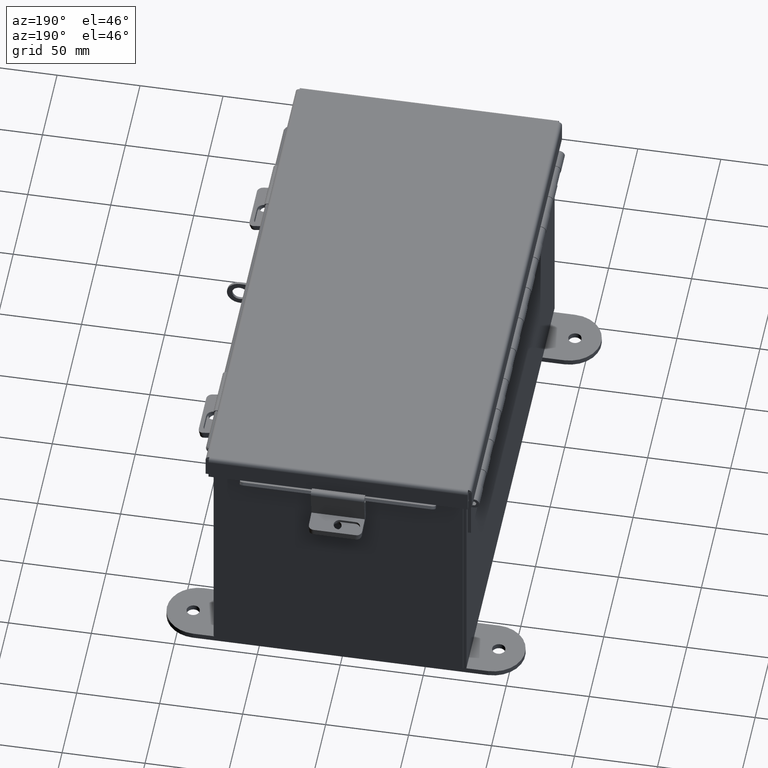
[diagram: clean part render]
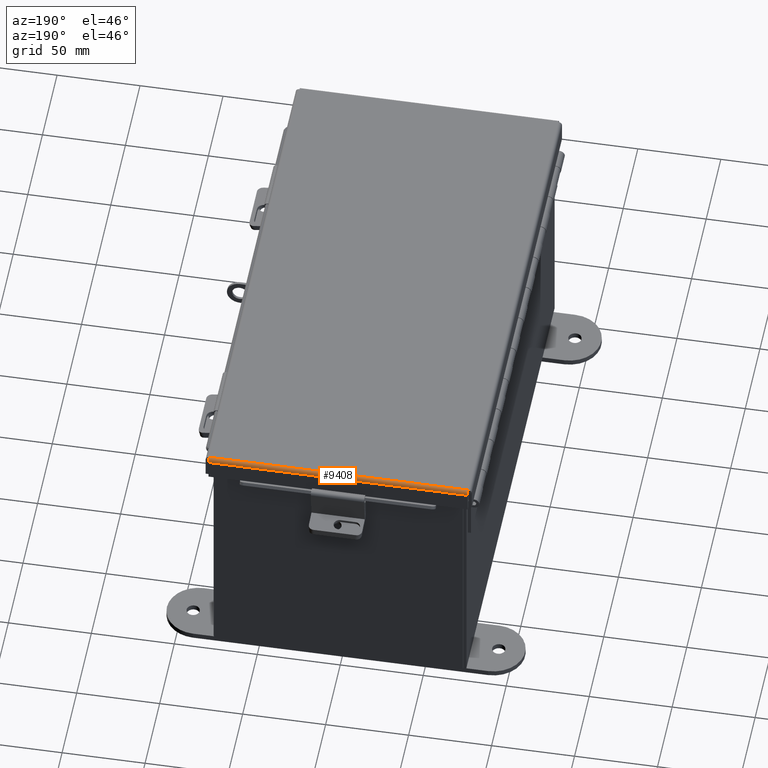
[diagram: same view with one face highlighted and labeled with its STEP entity id]
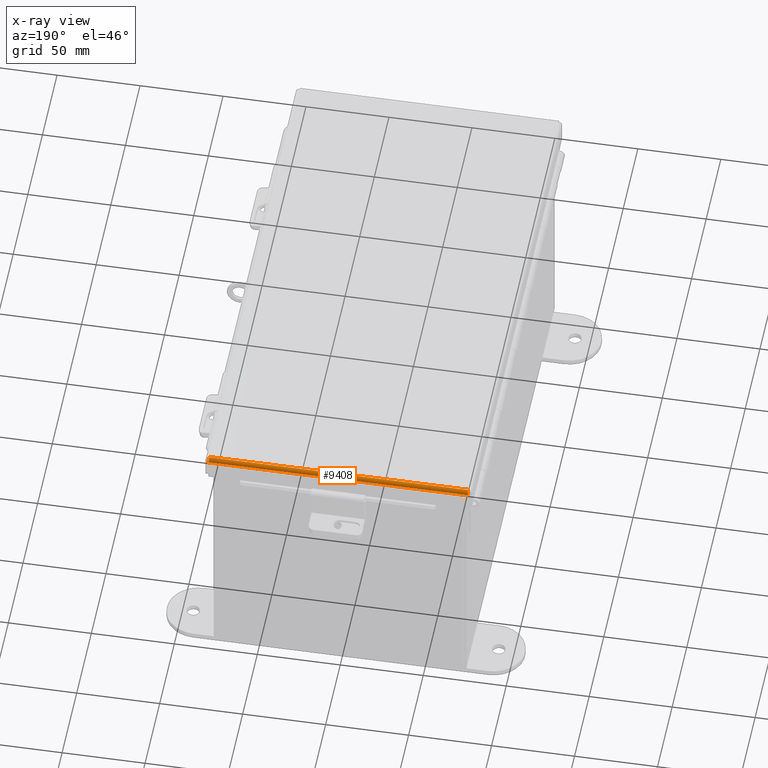
[diagram: x-ray of the same camera — body ghosted, the highlighted face saturated]
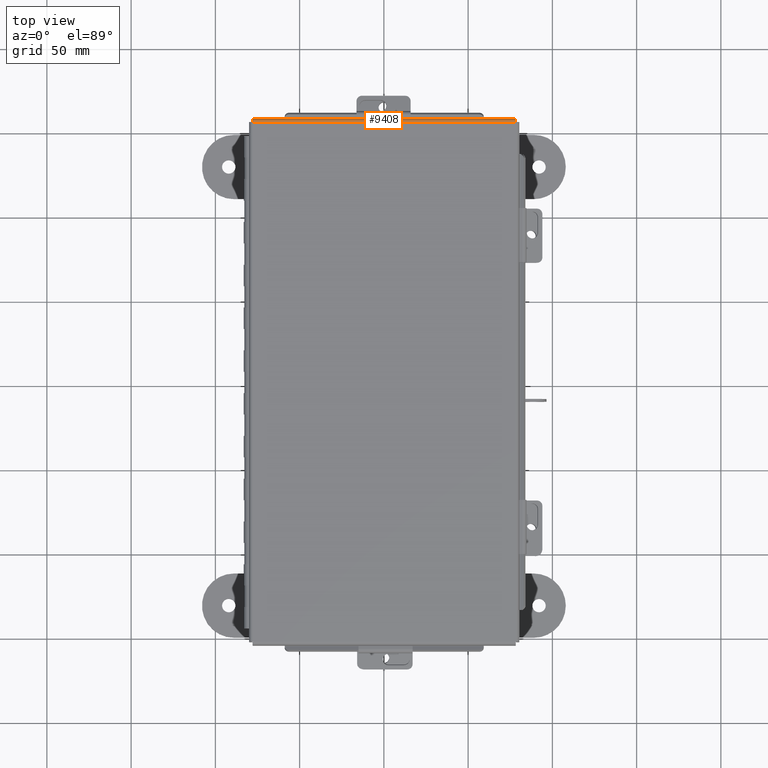
[diagram: same view with one face highlighted and labeled with its STEP entity id]
A machine part, auxiliary view. The second image highlights one B-rep face of the part: STEP entity #9408.
The next image is the same camera in x-ray: the body ghosted, the highlighted face saturated — about 0% of this face is hidden behind the body in this view.
A second angle (top view) of the same face is appended — the face is thin or edge-on in the first view.
In plain terms, the highlighted cylindrical surface (edge-blend (fillet) strip) has radius 2.2276 mm, axis along (1, -0, 0).
Its self-contained STEP definition (entity closure, byte-faithful):
#750 = CARTESIAN_POINT ( 'NONE',  ( -3.070526310729393400, 6.112717384578528100, -0.06363106625866873900 ) ) ;
#932 = CARTESIAN_POINT ( 'NONE',  ( -3.074478932188150700, 6.156250000000000000, 0.01299999999999901400 ) ) ;
#1049 = CARTESIAN_POINT ( 'NONE',  ( 3.069044077682356400, 6.080029903154992300, -0.07470000000000033600 ) ) ;
#1211 = VECTOR ( 'NONE', #3955, 39.37007874015748100 ) ;
#1613 = EDGE_CURVE ( 'NONE', #12621, #10052, #11034, .T. ) ;
#1619 = ORIENTED_EDGE ( 'NONE', *, *, #2546, .F. ) ;
#1723 = VERTEX_POINT ( 'NONE', #7015 ) ;
#2282 = CARTESIAN_POINT ( 'NONE',  ( -3.068550000000014300, 6.068550000000000100, -0.07470000000000015500 ) ) ;
#2317 = AXIS2_PLACEMENT_3D ( 'NONE', #4846, #8303, #11741 ) ;
#2546 = EDGE_CURVE ( 'NONE', #5296, #1723, #5656, .T. ) ;
#2783 = CARTESIAN_POINT ( 'NONE',  ( -3.074478932188150700, 6.068550000000000100, -0.07470000000000015500 ) ) ;
#3352 = CARTESIAN_POINT ( 'NONE',  ( 3.069538155364699400, 6.091505289458310400, -0.07241740374381161500 ) ) ;
#3806 = EDGE_CURVE ( 'NONE', #10052, #5296, #10397, .T. ) ;
#3955 = DIRECTION ( 'NONE',  ( 1.000000000000000000, -1.050496310726362000E-030, 7.888609052210086500E-031 ) ) ;
#4518 = CARTESIAN_POINT ( 'NONE',  ( 3.071020388411733700, 6.122445747341799900, -0.05713078207832075100 ) ) ;
#4547 = EDGE_CURVE ( 'NONE', #12621, #1723, #12182, .T. ) ;
#4564 = CARTESIAN_POINT ( 'NONE',  ( 3.068550000000005000, 6.068550000000000100, -0.07470000000000015500 ) ) ;
#4846 = CARTESIAN_POINT ( 'NONE',  ( -3.074478932188150700, 6.068550000000000100, 0.01300000000000010700 ) ) ;
#5296 = VERTEX_POINT ( 'NONE', #4564 ) ;
#5656 = B_SPLINE_CURVE_WITH_KNOTS ( 'NONE', 3,
 ( #9081, #1049, #3352, #11415, #4518, #12591, #5670, #13739, #6832, #14888 ),
 .UNSPECIFIED., .F., .F.,
 ( 4, 2, 2, 2, 4 ),
 ( 0.0000000000000000000, 0.2500000000000000000, 0.5000000000000000000, 0.7500000000000000000, 1.000000000000000000 ),
 .UNSPECIFIED. ) ;
#5670 = CARTESIAN_POINT ( 'NONE',  ( 3.072502621458767600, 6.145181066258667900, -0.03116738457852823200 ) ) ;
#6299 = DIRECTION ( 'NONE',  ( 1.000000000000000000, -1.099800117302675100E-030, 7.888609052210086500E-031 ) ) ;
#6477 = CARTESIAN_POINT ( 'NONE',  ( -3.072502621458772100, 6.145181066258666100, -0.03116738457852822100 ) ) ;
#6637 = ORIENTED_EDGE ( 'NONE', *, *, #3806, .F. ) ;
#6832 = CARTESIAN_POINT ( 'NONE',  ( 3.073984854505801900, 6.156250000000000000, 0.001520096845006985900 ) ) ;
#7015 = CARTESIAN_POINT ( 'NONE',  ( 3.074478932188142300, 6.156250000000000000, 0.01299999999999901400 ) ) ;
#7640 = CARTESIAN_POINT ( 'NONE',  ( -3.071020388411737300, 6.122445747341799000, -0.05713078207832074400 ) ) ;
#7768 = CARTESIAN_POINT ( 'NONE',  ( -3.069538155364704300, 6.091505289458309500, -0.07241740374381161500 ) ) ;
#8283 = CYLINDRICAL_SURFACE ( 'NONE', #2317, 0.08770000000000026400 ) ;
#8303 = DIRECTION ( 'NONE',  ( -1.000000000000000000, 1.050496310726362000E-030, -7.888609052210086500E-031 ) ) ;
#8743 = CARTESIAN_POINT ( 'NONE',  ( -3.073490776823461600, 6.153967403743811500, -0.009955289458309205700 ) ) ;
#8974 = ORIENTED_EDGE ( 'NONE', *, *, #1613, .F. ) ;
#9081 = CARTESIAN_POINT ( 'NONE',  ( 3.068550000000005000, 6.068550000000000100, -0.07470000000000015500 ) ) ;
#9157 = CARTESIAN_POINT ( 'NONE',  ( -3.069044077682359500, 6.080029903154993100, -0.07470000000000036300 ) ) ;
#9408 = ADVANCED_FACE ( 'NONE', ( #11717 ), #8283, .T. ) ;
#10052 = VERTEX_POINT ( 'NONE', #10570 ) ;
#10397 = LINE ( 'NONE', #2783, #1211 ) ;
#10570 = CARTESIAN_POINT ( 'NONE',  ( -3.068550000000014300, 6.068550000000000100, -0.07470000000000015500 ) ) ;
#10881 = CARTESIAN_POINT ( 'NONE',  ( 3.156250000000004400, 6.156250000000000000, 0.01300000000000010700 ) ) ;
#11034 = B_SPLINE_CURVE_WITH_KNOTS ( 'NONE', 3,
 ( #13395, #11073, #8743, #6477, #14540, #7640, #750, #7768, #9157, #2282 ),
 .UNSPECIFIED., .F., .F.,
 ( 4, 2, 2, 2, 4 ),
 ( 0.0000000000000000000, 0.2500000000000000000, 0.5000000000000000000, 0.7500000000000000000, 1.000000000000000000 ),
 .UNSPECIFIED. ) ;
#11073 = CARTESIAN_POINT ( 'NONE',  ( -3.073984854505805500, 6.156249999999999100, 0.001520096845006984200 ) ) ;
#11415 = CARTESIAN_POINT ( 'NONE',  ( 3.070526310729389000, 6.112717384578525400, -0.06363106625866873900 ) ) ;
#11717 = FACE_OUTER_BOUND ( 'NONE', #14042, .T. ) ;
#11741 = DIRECTION ( 'NONE',  ( 0.0000000000000000000, 1.000000000000000000, -4.477801015840783100E-015 ) ) ;
#12182 = LINE ( 'NONE', #10881, #14862 ) ;
#12591 = CARTESIAN_POINT ( 'NONE',  ( 3.072008543776423700, 6.138680782078321100, -0.04089574734180037600 ) ) ;
#12621 = VERTEX_POINT ( 'NONE', #932 ) ;
#13395 = CARTESIAN_POINT ( 'NONE',  ( -3.074478932188150700, 6.156250000000000000, 0.01299999999999901400 ) ) ;
#13693 = ORIENTED_EDGE ( 'NONE', *, *, #4547, .T. ) ;
#13739 = CARTESIAN_POINT ( 'NONE',  ( 3.073490776823456300, 6.153967403743811500, -0.009955289458309203900 ) ) ;
#14042 = EDGE_LOOP ( 'NONE', ( #6637, #8974, #13693, #1619 ) ) ;
#14540 = CARTESIAN_POINT ( 'NONE',  ( -3.072008543776427300, 6.138680782078321100, -0.04089574734180037600 ) ) ;
#14862 = VECTOR ( 'NONE', #6299, 39.37007874015748100 ) ;
#14888 = CARTESIAN_POINT ( 'NONE',  ( 3.074478932188142300, 6.156250000000000000, 0.01299999999999901400 ) ) ;